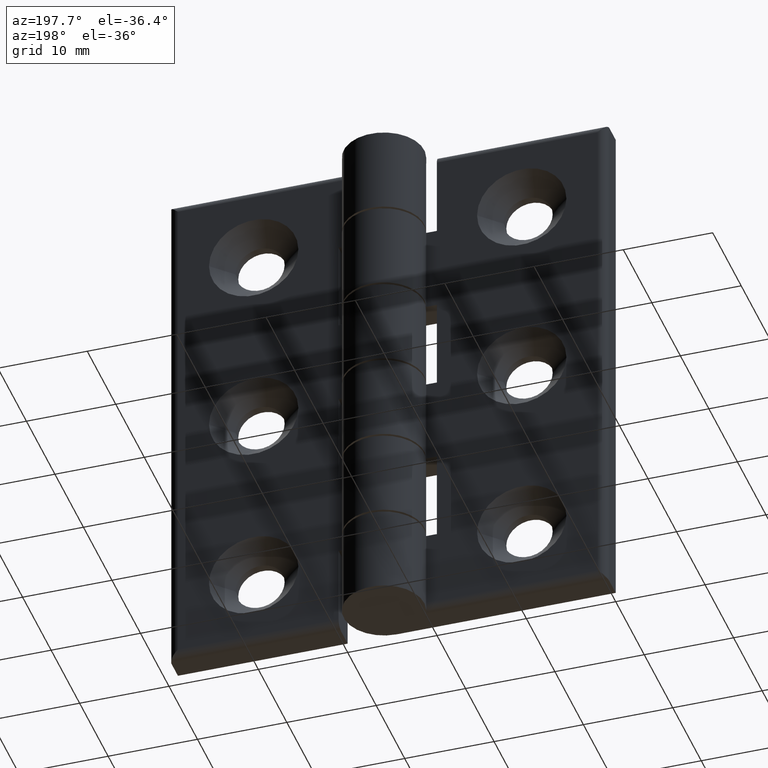
[diagram: clean part render]
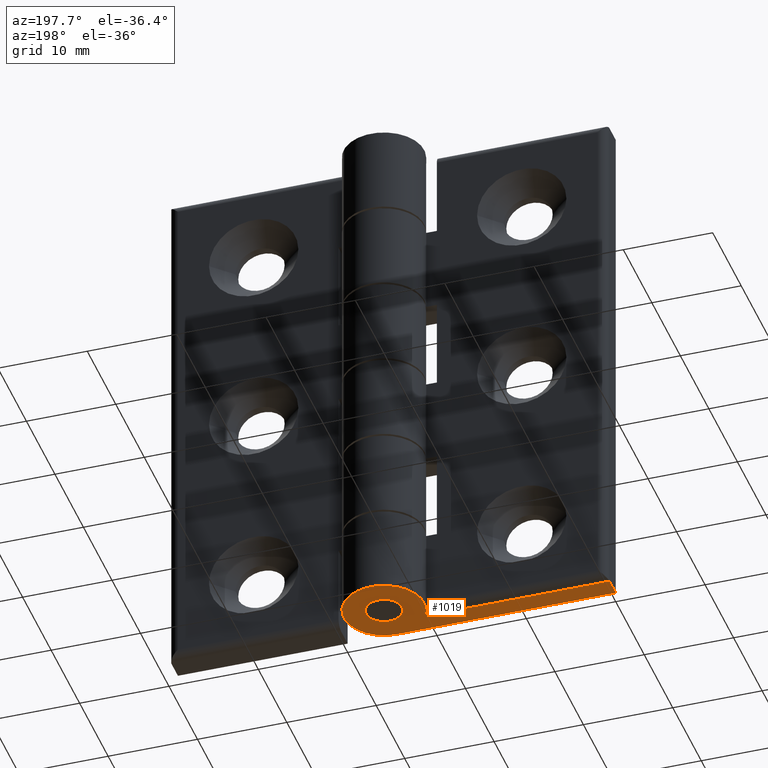
[diagram: same view with one face highlighted and labeled with its STEP entity id]
A machine part, auxiliary view. The second image highlights one B-rep face of the part: STEP entity #1019.
In plain terms, the highlighted planar face has unit normal (0, 0, 1).
Its self-contained STEP definition (entity closure, byte-faithful):
#61=FACE_BOUND('',#265,.T.);
#96=PLANE('',#1106);
#129=CIRCLE('',#1090,4.5);
#130=CIRCLE('',#1093,2.);
#185=FACE_OUTER_BOUND('',#264,.T.);
#264=EDGE_LOOP('',(#830,#831,#832,#833));
#265=EDGE_LOOP('',(#834));
#326=LINE('',#1497,#404);
#360=LINE('',#1595,#438);
#362=LINE('',#1625,#440);
#404=VECTOR('',#1175,20.6321840788373);
#438=VECTOR('',#1265,24.5);
#440=VECTOR('',#1309,2.2);
#483=VERTEX_POINT('',#1485);
#484=VERTEX_POINT('',#1496);
#519=VERTEX_POINT('',#1592);
#520=VERTEX_POINT('',#1594);
#524=VERTEX_POINT('',#1609);
#579=EDGE_CURVE('',#483,#484,#326,.T.);
#629=EDGE_CURVE('',#519,#520,#360,.T.);
#634=EDGE_CURVE('',#520,#483,#129,.T.);
#635=EDGE_CURVE('',#524,#524,#130,.T.);
#639=EDGE_CURVE('',#484,#519,#362,.T.);
#830=ORIENTED_EDGE('',*,*,#634,.F.);
#831=ORIENTED_EDGE('',*,*,#629,.F.);
#832=ORIENTED_EDGE('',*,*,#639,.F.);
#833=ORIENTED_EDGE('',*,*,#579,.F.);
#834=ORIENTED_EDGE('',*,*,#635,.T.);
#1019=ADVANCED_FACE('',(#185,#61),#96,.F.);
#1090=AXIS2_PLACEMENT_3D('',#1606,#1279,#1280);
#1093=AXIS2_PLACEMENT_3D('',#1610,#1285,#1286);
#1106=AXIS2_PLACEMENT_3D('',#1628,#1313,#1314);
#1175=DIRECTION('',(-1.,-1.09967340925723E-16,0.));
#1265=DIRECTION('',(1.,0.,0.));
#1279=DIRECTION('center_axis',(0.,0.,1.));
#1280=DIRECTION('ref_axis',(0.,-1.,0.));
#1285=DIRECTION('center_axis',(0.,0.,1.));
#1286=DIRECTION('ref_axis',(-1.,0.,0.));
#1309=DIRECTION('',(0.,-1.,0.));
#1313=DIRECTION('center_axis',(0.,0.,1.));
#1314=DIRECTION('ref_axis',(1.,0.,0.));
#1485=CARTESIAN_POINT('',(20.6321840788373,2.2,0.));
#1496=CARTESIAN_POINT('',(0.,2.2,0.));
#1497=CARTESIAN_POINT('',(17.2632207700449,2.2,0.));
#1592=CARTESIAN_POINT('',(0.,0.,0.));
#1594=CARTESIAN_POINT('',(24.5,0.,0.));
#1595=CARTESIAN_POINT('',(0.,0.,0.));
#1606=CARTESIAN_POINT('Origin',(24.5,4.5,0.));
#1609=CARTESIAN_POINT('',(26.5,4.5,0.));
#1610=CARTESIAN_POINT('Origin',(24.5,4.5,0.));
#1625=CARTESIAN_POINT('',(0.,3.2,0.));
#1628=CARTESIAN_POINT('Origin',(14.3345733857974,2.47423916448742,0.));